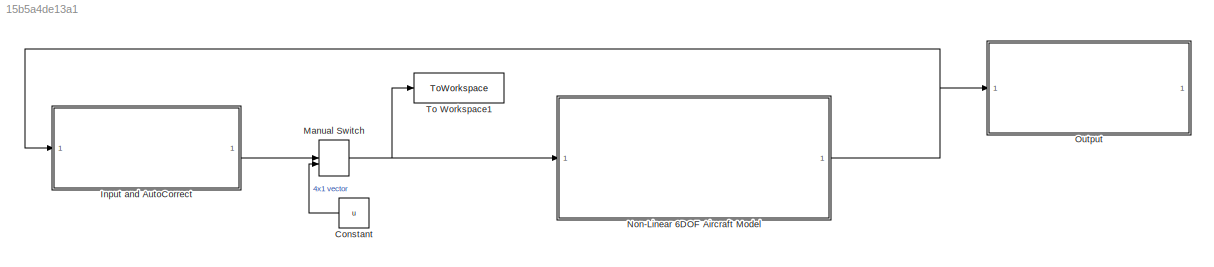
MODEL slx_15b5a4de13a1
KIND model
CONFIG AbsTol = auto
CONFIG EnableMultiTasking = off
CONFIG FixedStep = 0.1
CONFIG MaxStep = 0.1
CONFIG MinStep = auto
CONFIG RelTol = 1e-3
CONFIG SampleTimeConstraint = Unconstrained
CONFIG SolverName = VariableStepAuto
CONFIG StartTime = 0.0
CONFIG StopTime = TF
BLOCK [Constant] Constant
  Value = u
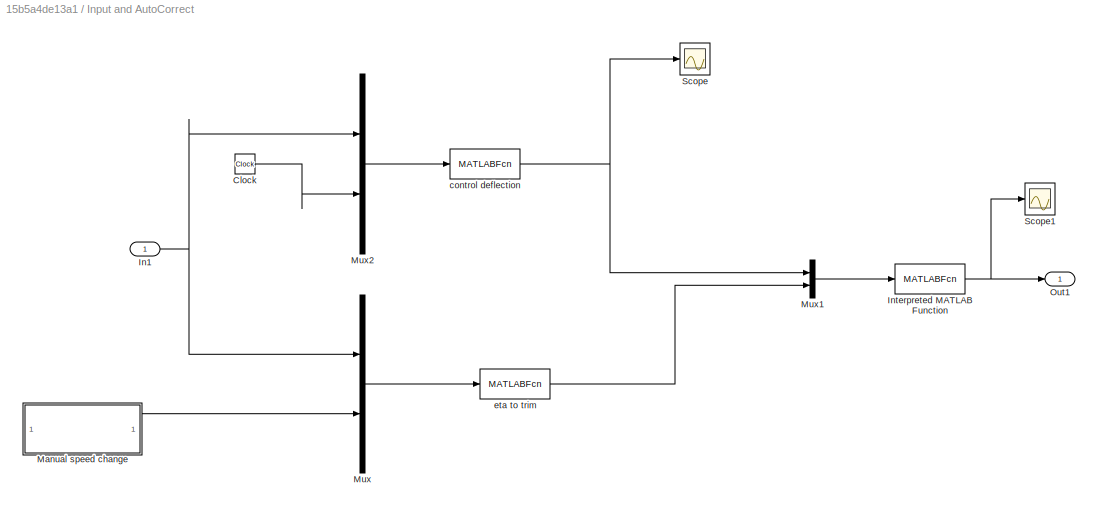
BLOCK [SubSystem] Input and AutoCorrect
BLOCK [Clock] Input and AutoCorrect/Clock
BLOCK [Inport] Input and AutoCorrect/In1
BLOCK [MATLABFcn] Input and AutoCorrect/Interpreted MATLAB Function
  MATLABFcn = control(u(1:4),u(5:8))
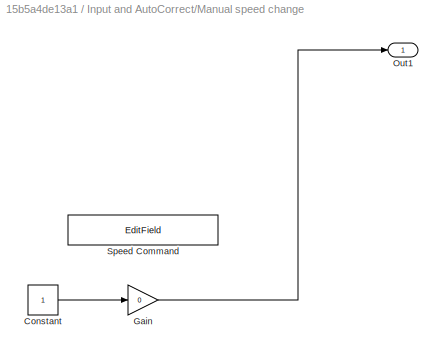
BLOCK [SubSystem] Input and AutoCorrect/Manual speed change
BLOCK [Constant] Input and AutoCorrect/Manual speed change/Constant
BLOCK [Gain] Input and AutoCorrect/Manual speed change/Gain
  Gain = 0
BLOCK [Outport] Input and AutoCorrect/Manual speed change/Out1
BLOCK [EditField] Input and AutoCorrect/Manual speed change/Speed Command
  Alignment = Center
  LabelPosition = Hide
  ShowInitialText = on
BLOCK [Mux] Input and AutoCorrect/Mux
  DisplayOption = bar
  Inputs = 2
BLOCK [Mux] Input and AutoCorrect/Mux1
  DisplayOption = bar
  Inputs = 2
BLOCK [Mux] Input and AutoCorrect/Mux2
  DisplayOption = bar
  Inputs = 2
BLOCK [Outport] Input and AutoCorrect/Out1
BLOCK [Scope] Input and AutoCorrect/Scope
  Floating = off
  NumInputPorts = 1
  ScopeSpecificationString = Simulink.scopes.TimeScopeBlockCfg('CurrentConfiguration', extmgr.ConfigurationSet(extmgr.Configuration('Core','General UI',true),extmgr.Configuration('Core','Source UI',true),extmgr.Configuration('Sources','WiredSimulink',true),extmgr.Configuration('Visuals','Time Domain',true,'SerializedDisplays',{struct('MinYLimReal','-0.07775','MaxYLimReal','0.03931','YLabelReal','','MinYLimMag','0.00000','MaxY...<+1569ch>
BLOCK [Scope] Input and AutoCorrect/Scope1
  Floating = off
  NumInputPorts = 1
  ScopeSpecificationString = Simulink.scopes.TimeScopeBlockCfg('CurrentConfiguration', extmgr.ConfigurationSet(extmgr.Configuration('Core','General UI',true),extmgr.Configuration('Core','Source UI',true),extmgr.Configuration('Sources','WiredSimulink',true,'DataLoggingVariableName','ScopeData1'),extmgr.Configuration('Visuals','Time Domain',true,'SerializedDisplays',{struct('MinYLimReal','-0.00198','MaxYLimReal','0.01783','YLab...<+1644ch>
BLOCK [MATLABFcn] Input and AutoCorrect/control deflection
  MATLABFcn = CntrlDeflec(u(1:9),u(10))
BLOCK [MATLABFcn] Input and AutoCorrect/eta to trim
  MATLABFcn = etatoTrim(u(1:9),u(10))
BLOCK [ManualSwitch] Manual Switch
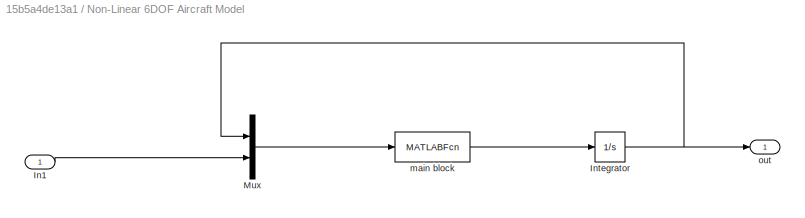
BLOCK [SubSystem] Non-Linear 6DOF Aircraft Model
BLOCK [Inport] Non-Linear 6DOF Aircraft Model/In1
BLOCK [Integrator] Non-Linear 6DOF Aircraft Model/Integrator
  InitialCondition = x0
BLOCK [Mux] Non-Linear 6DOF Aircraft Model/Mux
  DisplayOption = bar
  Inputs = 2
BLOCK [MATLABFcn] Non-Linear 6DOF Aircraft Model/main block
  MATLABFcn = UAV_model3(u(1:9), u(10:13))
BLOCK [Outport] Non-Linear 6DOF Aircraft Model/out
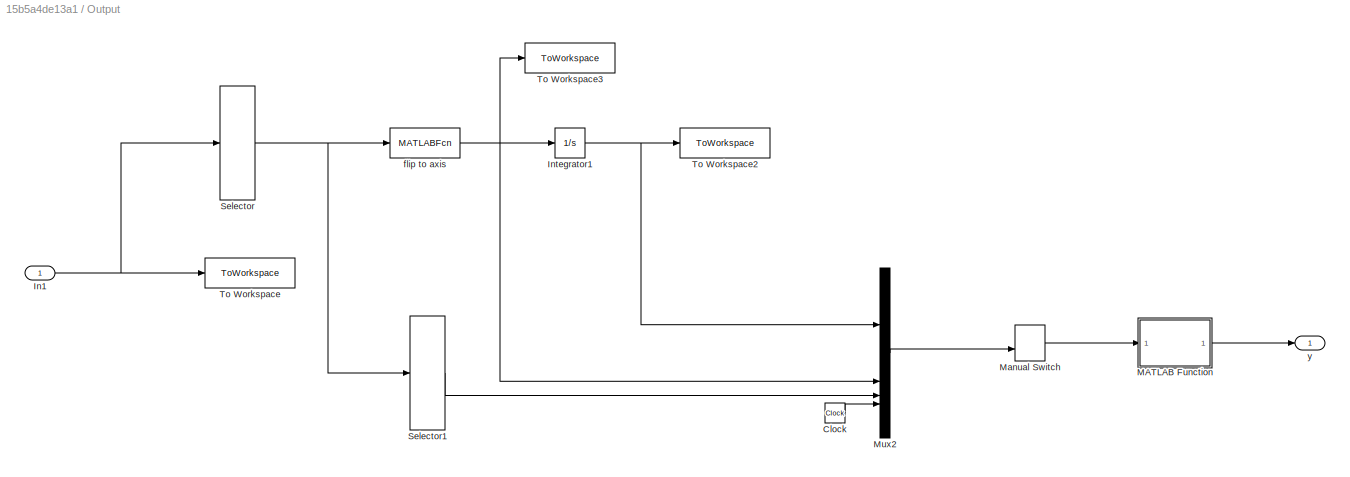
BLOCK [SubSystem] Output
BLOCK [Clock] Output/Clock
BLOCK [Inport] Output/In1
BLOCK [Integrator] Output/Integrator1
  InitialCondition = z0
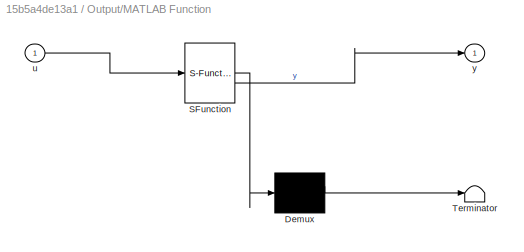
BLOCK [SubSystem] Output/MATLAB Function
  ErrorFcn = Stateflow.Translate.translate
  PermitHierarchicalResolution = ExplicitOnly
  SFBlockType = MATLAB Function
  TreatAsAtomicUnit = on
BLOCK [Demux] Output/MATLAB Function/ Demux 
  Outputs = 1
BLOCK [S-Function] Output/MATLAB Function/ SFunction 
  EnableBusSupport = on
  FunctionName = sf_sfun
  PortCounts = [1 2]
  SFcnIsStateOwnerBlock = off
  SFunctionDeploymentMode = off
  Tag = Stateflow S-Function 2
BLOCK [Terminator] Output/MATLAB Function/ Terminator 
BLOCK [Inport] Output/MATLAB Function/u
BLOCK [Outport] Output/MATLAB Function/y
BLOCK [ManualSwitch] Output/Manual Switch
  CurrentSetting = 0
  NameLocation = top
BLOCK [Mux] Output/Mux2
  DisplayOption = bar
BLOCK [Selector] Output/Selector
  IndexOptions = Index vector (dialog)
  Indices = [1 2 3 7 8 9]
  InputPortWidth = 9
  OutputSizes = 1
BLOCK [Selector] Output/Selector1
  IndexOptions = Index vector (dialog)
  Indices = [4 5 6]
  InputPortWidth = 6
  OutputSizes = 1
BLOCK [ToWorkspace] Output/To Workspace
  FixptAsFi = on
  MaxDataPoints = inf
  SampleTime = -1
  SaveFormat = Timeseries
  VariableName = simX
BLOCK [ToWorkspace] Output/To Workspace2
  FixptAsFi = on
  MaxDataPoints = inf
  SampleTime = -1
  SaveFormat = Timeseries
  VariableName = simZ
BLOCK [ToWorkspace] Output/To Workspace3
  FixptAsFi = on
  MaxDataPoints = inf
  SampleTime = -1
  SaveFormat = Timeseries
  VariableName = simXA
BLOCK [MATLABFcn] Output/flip to axis
  MATLABFcn = toNormalAxis(u(1:3), u(4:6))
BLOCK [Outport] Output/y
BLOCK [ToWorkspace] To Workspace1
  FixptAsFi = on
  MaxDataPoints = inf
  SampleTime = -1
  SaveFormat = Timeseries
  VariableName = simU
LINE Constant:1 -> Manual Switch:2
LINE Input and AutoCorrect/Clock:1 -> Input and AutoCorrect/Mux2:2
NET Input and AutoCorrect/In1:1 -> Input and AutoCorrect/Mux2:1, Input and AutoCorrect/Mux:1
NET Input and AutoCorrect/Interpreted MATLAB Function:1 -> Input and AutoCorrect/Out1:1, Input and AutoCorrect/Scope1:1
LINE Input and AutoCorrect/Manual speed change/Constant:1 -> Input and AutoCorrect/Manual speed change/Gain:1
LINE Input and AutoCorrect/Manual speed change/Gain:1 -> Input and AutoCorrect/Manual speed change/Out1:1
LINE Input and AutoCorrect/Manual speed change:1 -> Input and AutoCorrect/Mux:2
LINE Input and AutoCorrect/Mux1:1 -> Input and AutoCorrect/Interpreted MATLAB Function:1
LINE Input and AutoCorrect/Mux2:1 -> Input and AutoCorrect/control deflection:1
LINE Input and AutoCorrect/Mux:1 -> Input and AutoCorrect/eta to trim:1
NET Input and AutoCorrect/control deflection:1 -> Input and AutoCorrect/Mux1:1, Input and AutoCorrect/Scope:1
LINE Input and AutoCorrect/eta to trim:1 -> Input and AutoCorrect/Mux1:2
LINE Input and AutoCorrect:1 -> Manual Switch:1
NET Manual Switch:1 -> Non-Linear 6DOF Aircraft Model:1, To Workspace1:1
LINE Non-Linear 6DOF Aircraft Model/In1:1 -> Non-Linear 6DOF Aircraft Model/Mux:2
NET Non-Linear 6DOF Aircraft Model/Integrator:1 -> Non-Linear 6DOF Aircraft Model/Mux:1, Non-Linear 6DOF Aircraft Model/out:1
LINE Non-Linear 6DOF Aircraft Model/Mux:1 -> Non-Linear 6DOF Aircraft Model/main block:1
LINE Non-Linear 6DOF Aircraft Model/main block:1 -> Non-Linear 6DOF Aircraft Model/Integrator:1
NET Non-Linear 6DOF Aircraft Model:1 -> Input and AutoCorrect:1, Output:1
LINE Output/Clock:1 -> Output/Mux2:4
NET Output/In1:1 -> Output/Selector:1, Output/To Workspace:1
NET Output/Integrator1:1 -> Output/Mux2:1, Output/To Workspace2:1
LINE Output/MATLAB Function:1 -> Output/y:1
LINE Output/Manual Switch:1 -> Output/MATLAB Function:1
LINE Output/Mux2:1 -> Output/Manual Switch:2
LINE Output/Selector1:1 -> Output/Mux2:3
NET Output/Selector:1 -> Output/Selector1:1, Output/flip to axis:1
NET Output/flip to axis:1 -> Output/Integrator1:1, Output/Mux2:2, Output/To Workspace3:1
note: NET lines group one-source signal fan-out (src -> all destinations, sorted); 1:1 wires keep LINE
CHART Output/MATLAB Function states=1 transitions=1
  STATE_LABEL 'eML_blk_kernel()'
  STATE_LABEL "SCRIPT:\nfunction y = fcn(u)\ncoder.extrinsic('real_time_plot');\nreal_time_plot(u);\ny = u;"
CHART  states=0 transitions=0
